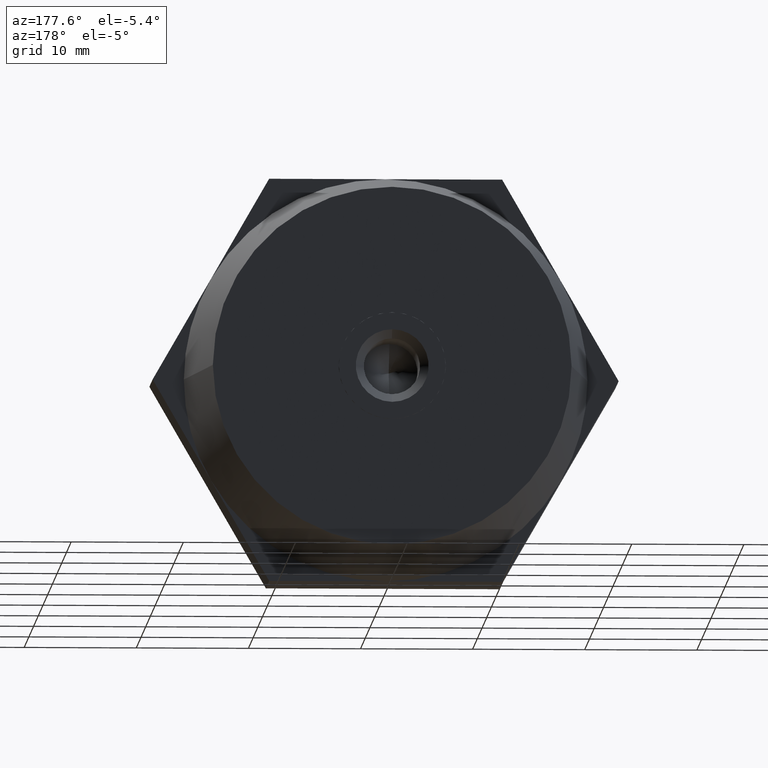
[diagram: clean part render]
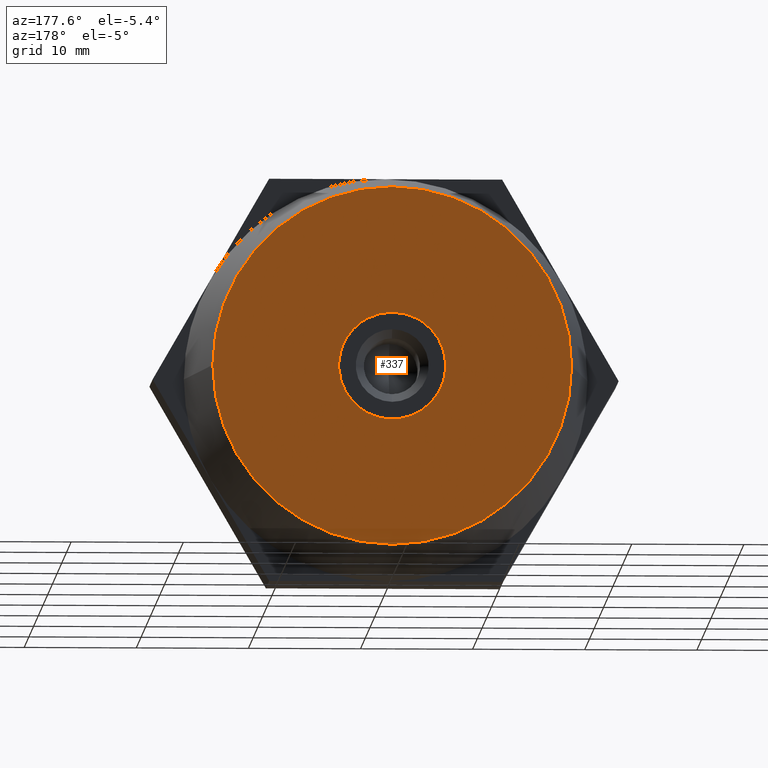
[diagram: same view with one face highlighted and labeled with its STEP entity id]
A machine part, auxiliary view. The second image highlights one B-rep face of the part: STEP entity #337.
In plain terms, the highlighted planar face has unit normal (-0, 1, 0).
Its self-contained STEP definition (entity closure, byte-faithful):
#20 = VECTOR ( 'NONE', #1824, 1000.000000000000100 ) ;
#58 = ORIENTED_EDGE ( 'NONE', *, *, #1430, .T. ) ;
#68 = CARTESIAN_POINT ( 'NONE',  ( 4.762500000000000200, 17.50000000000000000, 0.0000000000000000000 ) ) ;
#101 = DIRECTION ( 'NONE',  ( -1.224646799147352000E-016, 1.000000000000000000, 0.0000000000000000000 ) ) ;
#120 = EDGE_CURVE ( 'NONE', #2131, #2210, #1897, .T. ) ;
#127 = ORIENTED_EDGE ( 'NONE', *, *, #2298, .T. ) ;
#149 = ORIENTED_EDGE ( 'NONE', *, *, #3883, .T. ) ;
#157 = FACE_OUTER_BOUND ( 'NONE', #264, .T. ) ;
#182 = AXIS2_PLACEMENT_3D ( 'NONE', #2518, #101, #2254 ) ;
#264 = EDGE_LOOP ( 'NONE', ( #907, #1411 ) ) ;
#270 = DIRECTION ( 'NONE',  ( 1.261786539621752000E-015, 1.545242846954995000E-031, -1.000000000000000000 ) ) ;
#337 = ADVANCED_FACE ( 'NONE', ( #157, #3091 ), #714, .T. ) ;
#407 = CIRCLE ( 'NONE', #2785, 16.00000000000000000 ) ;
#432 = DIRECTION ( 'NONE',  ( -1.000000000000000000, 0.0000000000000000000, 0.0000000000000000000 ) ) ;
#460 = DIRECTION ( 'NONE',  ( 1.224646799147352000E-016, -1.000000000000000000, -0.0000000000000000000 ) ) ;
#537 = AXIS2_PLACEMENT_3D ( 'NONE', #1339, #3415, #2816 ) ;
#553 = CARTESIAN_POINT ( 'NONE',  ( -4.762500000000000200, 17.50000000000000000, 1.417932623899939700E-014 ) ) ;
#590 = CARTESIAN_POINT ( 'NONE',  ( 2.648668211796154600, 17.50000000000000000, 3.970052008956685100 ) ) ;
#594 = CARTESIAN_POINT ( 'NONE',  ( -2.113831788204174600, 17.50000000000000000, 4.278839962089954900 ) ) ;
#623 = VECTOR ( 'NONE', #2130, 1000.000000000000000 ) ;
#650 = VECTOR ( 'NONE', #964, 1000.000000000000000 ) ;
#695 = CARTESIAN_POINT ( 'NONE',  ( -2.113831788204339800, 17.50000000000000000, -4.278839962089874900 ) ) ;
#714 = PLANE ( 'NONE',  #182 ) ;
#716 = CIRCLE ( 'NONE', #2123, 4.772500000000000000 ) ;
#760 = CIRCLE ( 'NONE', #1531, 4.772500000000000000 ) ;
#765 = VERTEX_POINT ( 'NONE', #1682 ) ;
#783 = CARTESIAN_POINT ( 'NONE',  ( 2.648668211795659900, 17.50000000000000000, -3.970052008957014600 ) ) ;
#907 = ORIENTED_EDGE ( 'NONE', *, *, #1074, .T. ) ;
#921 = ORIENTED_EDGE ( 'NONE', *, *, #1850, .T. ) ;
#935 = CIRCLE ( 'NONE', #1396, 4.772500000000000000 ) ;
#964 = DIRECTION ( 'NONE',  ( 0.0000000000000000000, 0.0000000000000000000, 1.000000000000000000 ) ) ;
#984 = VECTOR ( 'NONE', #270, 1000.000000000000000 ) ;
#985 = AXIS2_PLACEMENT_3D ( 'NONE', #1635, #2523, #1924 ) ;
#1074 = EDGE_CURVE ( 'NONE', #3838, #3098, #1946, .T. ) ;
#1149 = CARTESIAN_POINT ( 'NONE',  ( 4.762500000000000200, 17.50000000000000000, 0.3087879531335705500 ) ) ;
#1150 = VERTEX_POINT ( 'NONE', #2062 ) ;
#1167 = ORIENTED_EDGE ( 'NONE', *, *, #3898, .T. ) ;
#1282 = EDGE_CURVE ( 'NONE', #3693, #2342, #3056, .T. ) ;
#1312 = AXIS2_PLACEMENT_3D ( 'NONE', #2618, #3217, #2313 ) ;
#1315 = CARTESIAN_POINT ( 'NONE',  ( -14.38125000000000000, 17.50000000000000000, 2.803757244752100000 ) ) ;
#1335 = ORIENTED_EDGE ( 'NONE', *, *, #2409, .T. ) ;
#1339 = CARTESIAN_POINT ( 'NONE',  ( -5.844626848930769500E-016, 17.50000000000000000, 0.0000000000000000000 ) ) ;
#1396 = AXIS2_PLACEMENT_3D ( 'NONE', #2537, #3131, #432 ) ;
#1402 = ORIENTED_EDGE ( 'NONE', *, *, #3015, .T. ) ;
#1411 = ORIENTED_EDGE ( 'NONE', *, *, #1695, .T. ) ;
#1430 = EDGE_CURVE ( 'NONE', #2260, #765, #3283, .T. ) ;
#1443 = DIRECTION ( 'NONE',  ( -1.224646799147352000E-016, 1.000000000000000000, 0.0000000000000000000 ) ) ;
#1454 = VERTEX_POINT ( 'NONE', #3088 ) ;
#1457 = CARTESIAN_POINT ( 'NONE',  ( -1.348150961071065100E-030, 17.50000000000000000, -4.772500000000000000 ) ) ;
#1485 = CARTESIAN_POINT ( 'NONE',  ( -5.844626848930769500E-016, 17.50000000000000000, 0.0000000000000000000 ) ) ;
#1489 = CARTESIAN_POINT ( 'NONE',  ( -9.618750000000000400, 17.50000000000000000, -11.05264921579893800 ) ) ;
#1531 = AXIS2_PLACEMENT_3D ( 'NONE', #1485, #3552, #2683 ) ;
#1545 = EDGE_CURVE ( 'NONE', #3648, #3693, #935, .T. ) ;
#1592 = VECTOR ( 'NONE', #2889, 1000.000000000000000 ) ;
#1635 = CARTESIAN_POINT ( 'NONE',  ( -5.844626848930769500E-016, 17.50000000000000000, 0.0000000000000000000 ) ) ;
#1653 = AXIS2_PLACEMENT_3D ( 'NONE', #3249, #1443, #3533 ) ;
#1677 = VERTEX_POINT ( 'NONE', #1457 ) ;
#1682 = CARTESIAN_POINT ( 'NONE',  ( -4.762500000000000200, 17.50000000000000000, 0.3087879531329760200 ) ) ;
#1695 = EDGE_CURVE ( 'NONE', #3098, #3838, #407, .T. ) ;
#1745 = CARTESIAN_POINT ( 'NONE',  ( -5.844626848930769500E-016, 17.50000000000000000, 0.0000000000000000000 ) ) ;
#1764 = CARTESIAN_POINT ( 'NONE',  ( -2.399615652258974800E-031, 17.50000000000000000, 0.0000000000000000000 ) ) ;
#1790 = EDGE_CURVE ( 'NONE', #765, #2131, #2306, .T. ) ;
#1808 = VERTEX_POINT ( 'NONE', #590 ) ;
#1824 = DIRECTION ( 'NONE',  ( 0.8660254037844383700, 1.060575238724906500E-016, -0.5000000000000003300 ) ) ;
#1848 = LINE ( 'NONE', #1489, #3317 ) ;
#1850 = EDGE_CURVE ( 'NONE', #2591, #1677, #2762, .T. ) ;
#1851 = CARTESIAN_POINT ( 'NONE',  ( 16.00000000000000000, 17.50000000000000400, 0.0000000000000000000 ) ) ;
#1897 = CIRCLE ( 'NONE', #537, 4.772500000000000000 ) ;
#1924 = DIRECTION ( 'NONE',  ( -1.000000000000000000, 0.0000000000000000000, -8.881784197001252300E-016 ) ) ;
#1931 = ORIENTED_EDGE ( 'NONE', *, *, #1282, .T. ) ;
#1946 = CIRCLE ( 'NONE', #1653, 16.00000000000000000 ) ;
#2041 = CARTESIAN_POINT ( 'NONE',  ( -16.00000000000000000, 17.49999999999999600, 2.081899558550501100E-015 ) ) ;
#2061 = DIRECTION ( 'NONE',  ( -1.000000000000000000, -2.168404344971008900E-016, 0.0000000000000000000 ) ) ;
#2062 = CARTESIAN_POINT ( 'NONE',  ( 2.113831788204394900, 17.50000000000000000, -4.278839962089850100 ) ) ;
#2107 = LINE ( 'NONE', #3007, #1592 ) ;
#2123 = AXIS2_PLACEMENT_3D ( 'NONE', #1745, #460, #3512 ) ;
#2130 = DIRECTION ( 'NONE',  ( -0.8660254037844387100, -1.060575238724905700E-016, -0.4999999999999998900 ) ) ;
#2131 = VERTEX_POINT ( 'NONE', #3418 ) ;
#2163 = CARTESIAN_POINT ( 'NONE',  ( -5.844626848930769500E-016, 17.50000000000000000, 0.0000000000000000000 ) ) ;
#2210 = VERTEX_POINT ( 'NONE', #3169 ) ;
#2254 = DIRECTION ( 'NONE',  ( -1.000000000000000000, -1.224646799147352000E-016, 0.0000000000000000000 ) ) ;
#2260 = VERTEX_POINT ( 'NONE', #2971 ) ;
#2273 = EDGE_LOOP ( 'NONE', ( #127, #2631, #1931, #149, #3224, #1402, #1167, #58, #2701, #2349, #1335, #921, #3596 ) ) ;
#2298 = EDGE_CURVE ( 'NONE', #1150, #3648, #1848, .T. ) ;
#2306 = LINE ( 'NONE', #553, #984 ) ;
#2313 = DIRECTION ( 'NONE',  ( -1.000000000000000000, 0.0000000000000000000, 1.776356839400250500E-015 ) ) ;
#2342 = VERTEX_POINT ( 'NONE', #1149 ) ;
#2349 = ORIENTED_EDGE ( 'NONE', *, *, #120, .T. ) ;
#2409 = EDGE_CURVE ( 'NONE', #2210, #2591, #3234, .T. ) ;
#2410 = DIRECTION ( 'NONE',  ( 1.224646799147352000E-016, -1.000000000000000000, -0.0000000000000000000 ) ) ;
#2463 = CIRCLE ( 'NONE', #1312, 4.772500000000000000 ) ;
#2503 = LINE ( 'NONE', #3891, #623 ) ;
#2518 = CARTESIAN_POINT ( 'NONE',  ( -16.00000000000000000, 17.50000000000000000, 0.0000000000000000000 ) ) ;
#2523 = DIRECTION ( 'NONE',  ( 1.224646799147352000E-016, -1.000000000000000000, -0.0000000000000000000 ) ) ;
#2537 = CARTESIAN_POINT ( 'NONE',  ( -5.844626848930769500E-016, 17.50000000000000000, 0.0000000000000000000 ) ) ;
#2591 = VERTEX_POINT ( 'NONE', #695 ) ;
#2618 = CARTESIAN_POINT ( 'NONE',  ( -5.844626848930769500E-016, 17.50000000000000000, 0.0000000000000000000 ) ) ;
#2631 = ORIENTED_EDGE ( 'NONE', *, *, #1545, .T. ) ;
#2683 = DIRECTION ( 'NONE',  ( -1.000000000000000000, 0.0000000000000000000, 0.0000000000000000000 ) ) ;
#2701 = ORIENTED_EDGE ( 'NONE', *, *, #1790, .T. ) ;
#2762 = CIRCLE ( 'NONE', #3456, 4.772500000000000000 ) ;
#2785 = AXIS2_PLACEMENT_3D ( 'NONE', #1764, #3833, #2061 ) ;
#2816 = DIRECTION ( 'NONE',  ( -1.000000000000000000, 0.0000000000000000000, 0.0000000000000000000 ) ) ;
#2889 = DIRECTION ( 'NONE',  ( -0.8660254037844387100, -1.060575238724907700E-016, 0.4999999999999998900 ) ) ;
#2971 = CARTESIAN_POINT ( 'NONE',  ( -2.648668211795859800, 17.50000000000000000, 3.970052008956880500 ) ) ;
#3007 = CARTESIAN_POINT ( 'NONE',  ( -9.618750000000000400, 17.50000000000000000, 11.05264921579889900 ) ) ;
#3015 = EDGE_CURVE ( 'NONE', #1454, #3254, #2463, .T. ) ;
#3056 = LINE ( 'NONE', #68, #650 ) ;
#3088 = CARTESIAN_POINT ( 'NONE',  ( 2.113831788203845100, 17.50000000000000000, 4.278839962090120100 ) ) ;
#3091 = FACE_BOUND ( 'NONE', #2273, .T. ) ;
#3098 = VERTEX_POINT ( 'NONE', #2041 ) ;
#3131 = DIRECTION ( 'NONE',  ( 1.224646799147352000E-016, -1.000000000000000000, -0.0000000000000000000 ) ) ;
#3169 = CARTESIAN_POINT ( 'NONE',  ( -2.648668211795719900, 17.50000000000000000, -3.970052008956975100 ) ) ;
#3217 = DIRECTION ( 'NONE',  ( 1.224646799147352000E-016, -1.000000000000000000, -0.0000000000000000000 ) ) ;
#3224 = ORIENTED_EDGE ( 'NONE', *, *, #3247, .T. ) ;
#3234 = LINE ( 'NONE', #1315, #20 ) ;
#3247 = EDGE_CURVE ( 'NONE', #1808, #1454, #2107, .T. ) ;
#3249 = CARTESIAN_POINT ( 'NONE',  ( -2.399615652258974800E-031, 17.50000000000000000, 0.0000000000000000000 ) ) ;
#3254 = VERTEX_POINT ( 'NONE', #594 ) ;
#3269 = CARTESIAN_POINT ( 'NONE',  ( 4.762500000000000200, 17.50000000000000000, -0.3087879531335415200 ) ) ;
#3283 = CIRCLE ( 'NONE', #985, 4.772500000000000000 ) ;
#3304 = DIRECTION ( 'NONE',  ( -1.000000000000000000, 0.0000000000000000000, 0.0000000000000000000 ) ) ;
#3317 = VECTOR ( 'NONE', #3530, 1000.000000000000000 ) ;
#3415 = DIRECTION ( 'NONE',  ( 1.224646799147352000E-016, -1.000000000000000000, -0.0000000000000000000 ) ) ;
#3418 = CARTESIAN_POINT ( 'NONE',  ( -4.762500000000000200, 17.50000000000000000, -0.3087879531329880700 ) ) ;
#3456 = AXIS2_PLACEMENT_3D ( 'NONE', #2163, #2410, #3304 ) ;
#3512 = DIRECTION ( 'NONE',  ( -1.000000000000000000, 0.0000000000000000000, -8.881784197001252300E-016 ) ) ;
#3530 = DIRECTION ( 'NONE',  ( 0.8660254037844387100, 1.060575238724905700E-016, 0.4999999999999998900 ) ) ;
#3533 = DIRECTION ( 'NONE',  ( -1.000000000000000000, -2.168404344971008900E-016, 0.0000000000000000000 ) ) ;
#3552 = DIRECTION ( 'NONE',  ( 1.224646799147352000E-016, -1.000000000000000000, -0.0000000000000000000 ) ) ;
#3571 = EDGE_CURVE ( 'NONE', #1677, #1150, #716, .T. ) ;
#3596 = ORIENTED_EDGE ( 'NONE', *, *, #3571, .T. ) ;
#3648 = VERTEX_POINT ( 'NONE', #783 ) ;
#3693 = VERTEX_POINT ( 'NONE', #3269 ) ;
#3833 = DIRECTION ( 'NONE',  ( -1.224646799147352000E-016, 1.000000000000000000, 0.0000000000000000000 ) ) ;
#3838 = VERTEX_POINT ( 'NONE', #1851 ) ;
#3883 = EDGE_CURVE ( 'NONE', #2342, #1808, #760, .T. ) ;
#3891 = CARTESIAN_POINT ( 'NONE',  ( -14.38125000000000000, 17.50000000000000000, -2.803757244752090200 ) ) ;
#3898 = EDGE_CURVE ( 'NONE', #3254, #2260, #2503, .T. ) ;